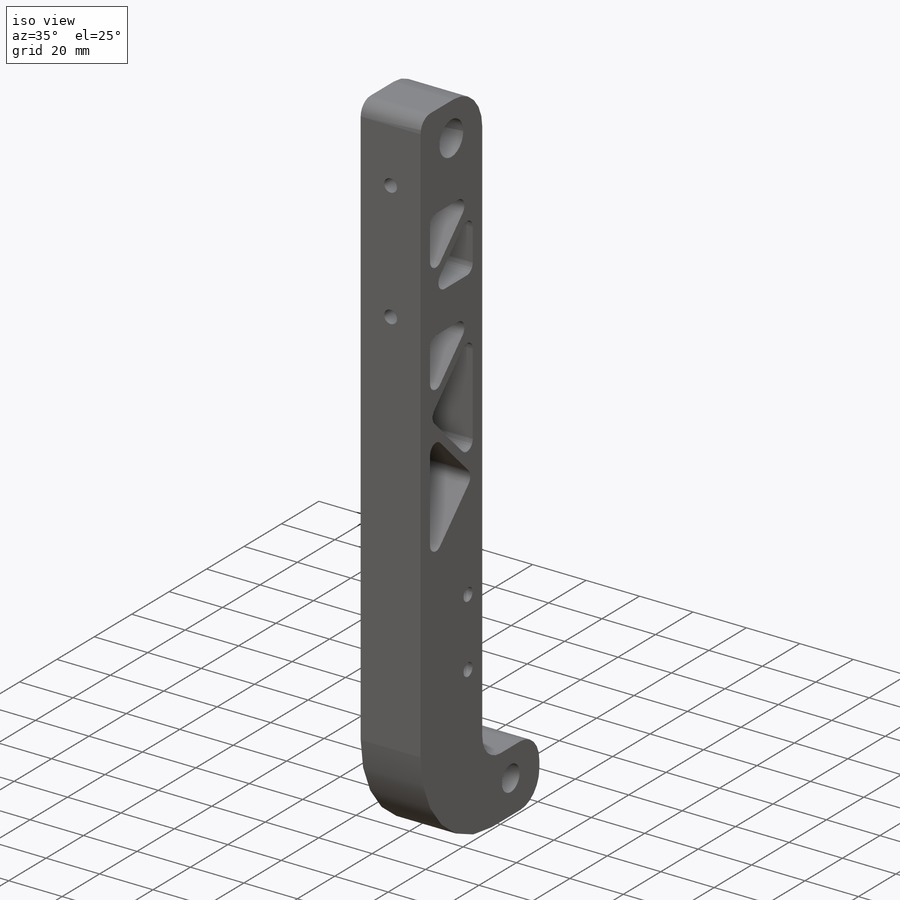
[diagram: iso view]
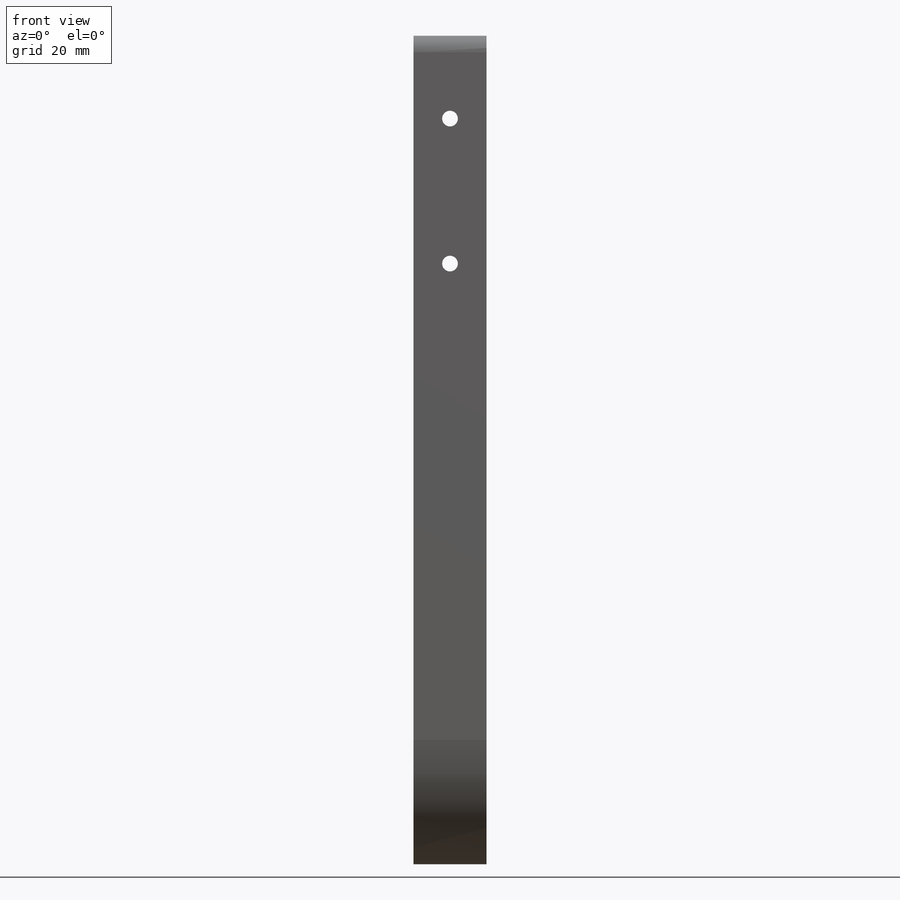
[diagram: front view]
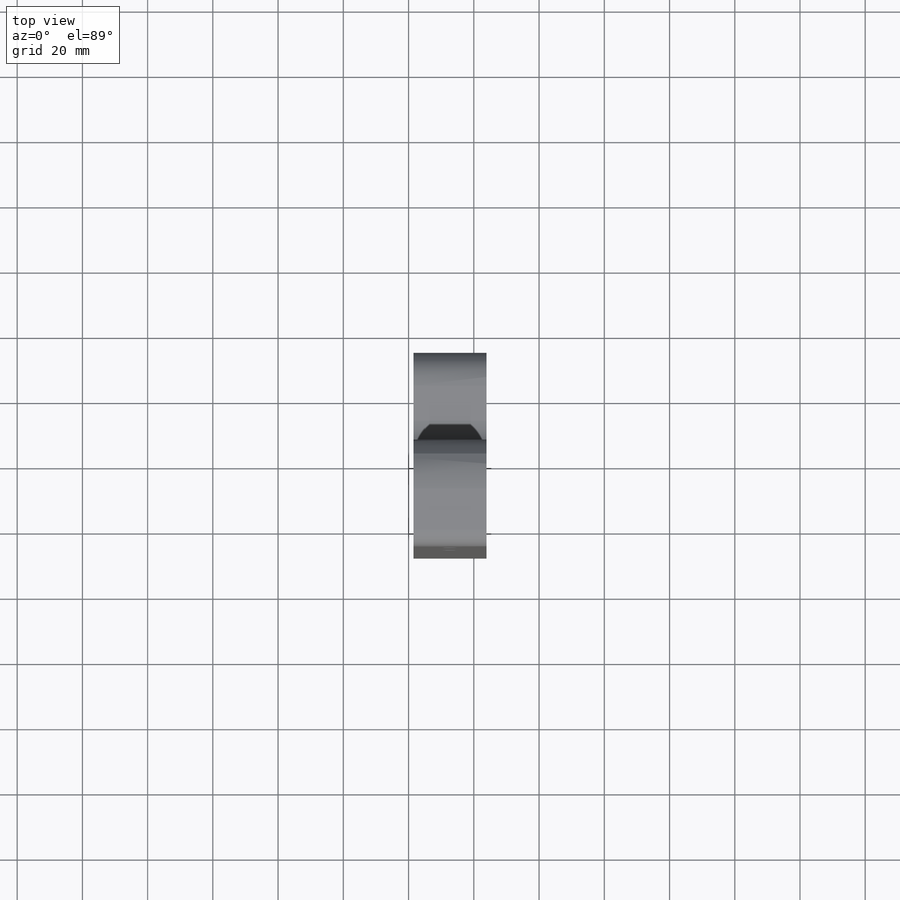
[diagram: top view]
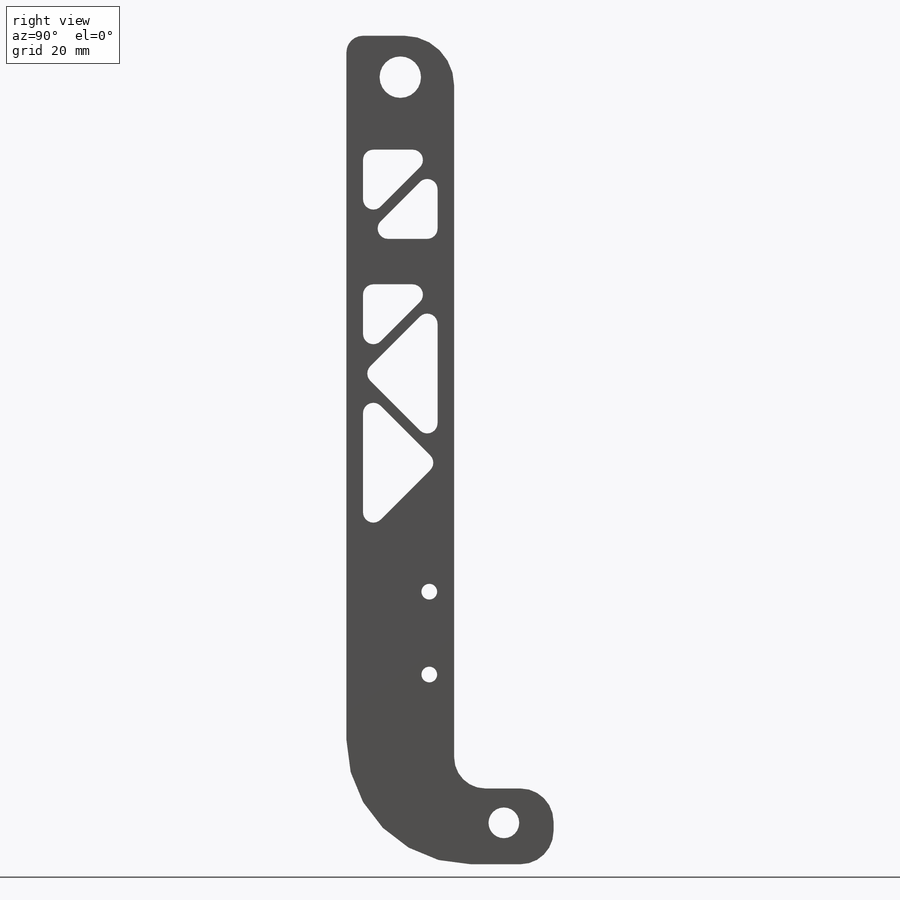
[diagram: right view]
SOLIDWORKS PART (.sldprt)
format: sldprt  version: not decoded by parser v0  size: 474,624 bytes
history: native  units: mm
features: sketch x14, cut_extrude x10, fillet x7, extrude x2, material x1, plane x1 (+11 scaffold rows collapsed)
feature tree (46):
  scaffold x11  (default folders/planes/origin — collapsed)
  material  "6061-T6 (SS)"
  sketch  "Side Outline"  dims[c1.D1=9.4234mm c1.D2=12.7mm c1.D10=4.826mm c2.D2=12.7mm c2.D3=177.8mm c2.D4=58.166mm c2.D5=55.88mm c2.D6=15.24mm c2.D7=7.62mm c2.D8=7.366mm c2.D9=7.366mm c2.D11=12.7mm c2.D12=7.62mm c2.D13=44.45mm]
  sketch  "Side Outline 2"  dims[D1=19.685mm D2=10.16mm D3=16.51mm D4=50.8mm D5=35.56mm D6=12.7mm D7=254.0mm]
  sketch  "Sketch3"
  extrude  "Boss-Extrude1"  Depth=25.4mm
  sketch  "Sketch4"
  cut_extrude  "Cut-Extrude1"  [1 undecoded]
  sketch  "Sketch5"
  cut_extrude  "Cut-Extrude2"  [1 undecoded]
  sketch  "Sketch6"
  cut_extrude  "Cut-Extrude3"  [1 undecoded]
  sketch  "Sketch7"
  cut_extrude  "Cut-Extrude4"  Depth=1.4986mm
  sketch  "Sketch8"
  cut_extrude  "Cut-Extrude5"  Depth=1.4986mm
  sketch  "Sketch9"  dims[D1=20.32mm D2=101.6mm]
  cut_extrude  "Cut-Extrude6"  [1 undecoded]
  fillet  "Fillet5"  Radius=6.35mm
  sketch  "Sketch14"
  extrude  "Boss-Extrude2"  Depth=12.7mm
  fillet  "Fillet8"  Radius=38.1mm
  fillet  "Fillet9"  Radius=9.525mm
  fillet  "Fillet10"  Radius=10.16mm
  fillet  "Fillet11"  Radius=15.24mm
  plane  "Mid Plane"
  fillet  "Fillet12"  Radius=5.08mm
  sketch  "Sketch18"  dims[D3=4.826mm D1=25.4mm D2=44.45mm]
  cut_extrude  "Cut-Extrude8"  [1 undecoded]
  sketch  "Sketch19"  dims[D1=3.175mm D2=3.175mm D3=3.175mm D4=5.08mm D5=5.08mm D6=34.925mm D7=76.2mm]
  cut_extrude  "Cut-Extrude9"  [1 undecoded]
  fillet  "Fillet13"  Radius=3.175mm
  sketch  "Sketch20"  dims[D1=12.7mm D2=16.51mm D3=12.7mm]
  cut_extrude  "Cut-Extrude10"  [1 undecoded]
  sketch  "Sketch21"
  cut_extrude  "Cut-Extrude11"  [1 undecoded]
decode coverage: 17 of 33 modeling features carry decoded parameters
note: 8 parameter values undecoded
summary: no parameter record found for 8 features
note: suppression state not decoded; provenance and decode notes live in map.json
